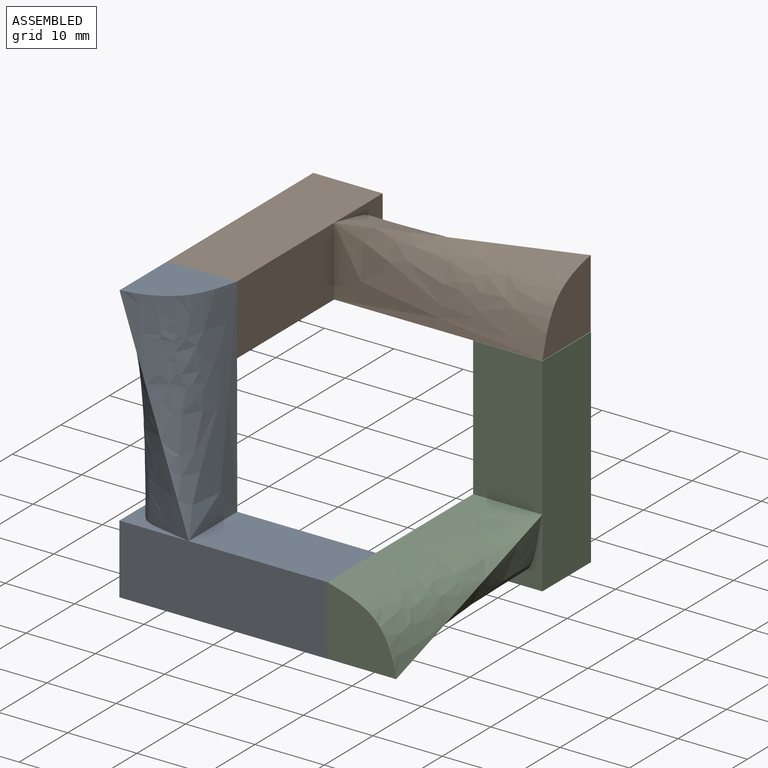
[diagram: assembled view]
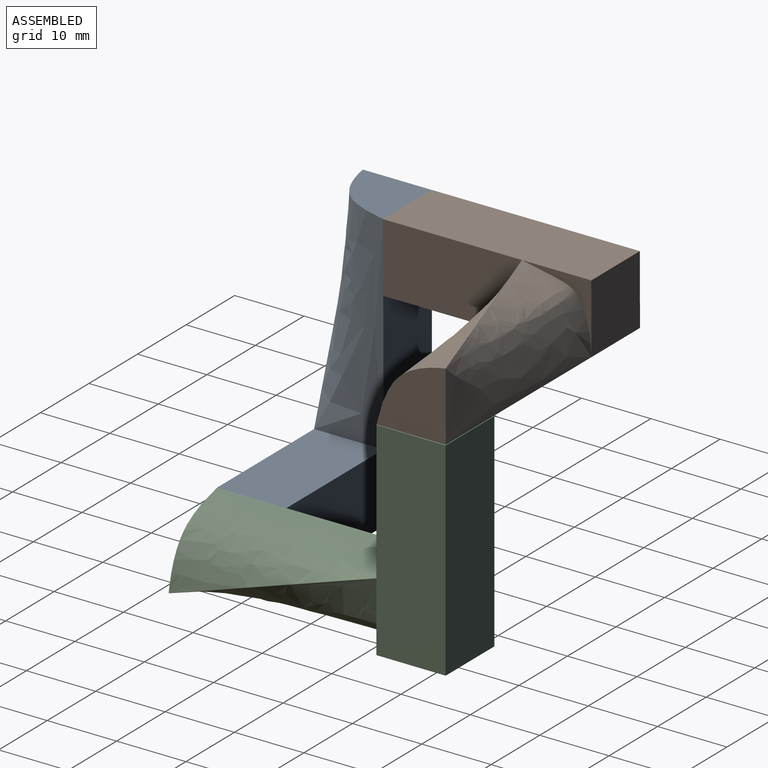
[diagram: assembled view, second angle]
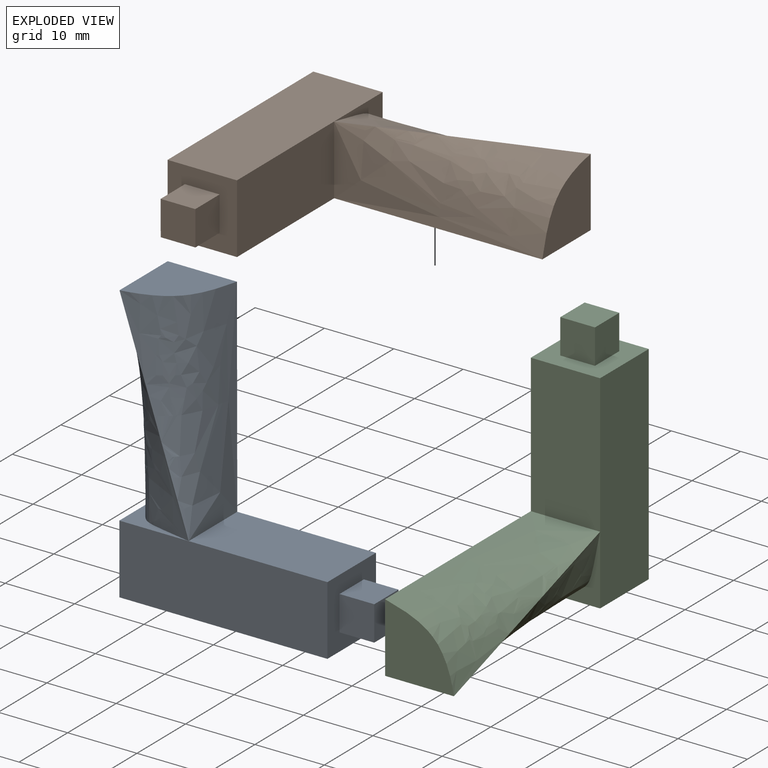
[diagram: exploded view]
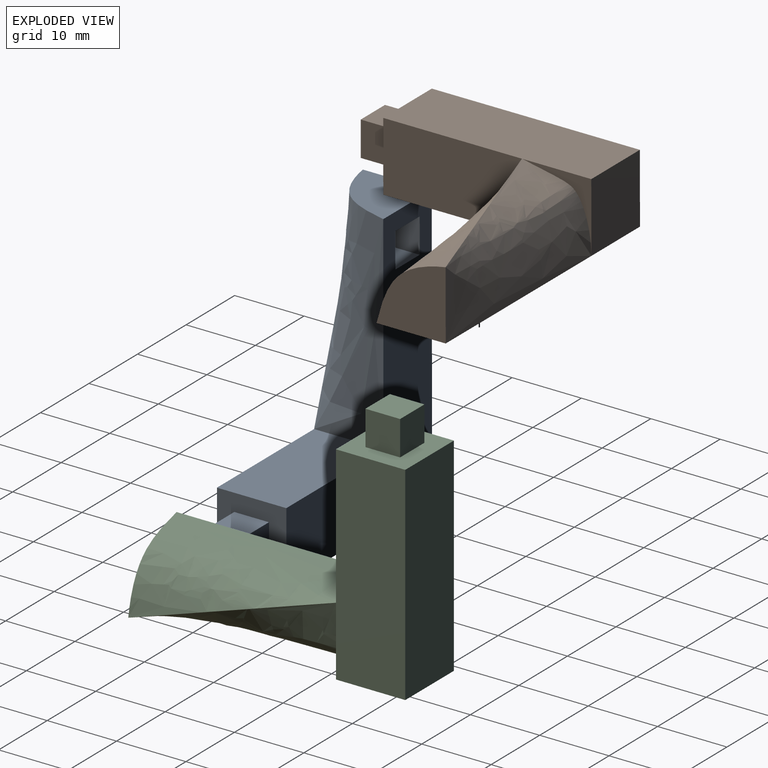
[diagram: exploded view, second angle]
ASSEMBLY  parts=3 mates=6
PART A: 21 faces, bbox 40.2x10.2x35.2 mm
  f0: plane 30x10mm, normal (0,-1,0), area 274.8mm2, adj f6,f8,f9,f10,f16,f17,f18,f19
  f1: plane 10x10mm, normal (0,0,1), area 75mm2, adj f2,f4,f5,f6,f11,f12,f13,f14
  f2: plane 20x10mm, normal (1,0,0), area 200mm2, adj f1,f4,f6,f9
  f3: plane 10.15x10.15mm, normal (1,0,0), area 16.6mm2, adj f4,f7,f10
  f4: plane 30x10mm, normal (0,1,0), area 300mm2, adj f1,f2,f3,f5,f7
  f5: plane 30x10mm, normal (-1,0,0), area 300mm2, adj f1,f4,f6,f7
  f6: plane 30x10mm, normal (0,-1,0), area 300mm2, adj f0,f1,f2,f5,f7
  f7: plane 10x10mm, normal (0,0,-1), area 100mm2, adj f3,f4,f5,f6
  f8: plane 10.06x10mm, normal (1,0,0), area 74.1mm2, adj f0,f9,f10
  f9: bspline ~30x10mm, area 361.7mm2, adj f0,f2,f8,f10
  f10: bspline ~30x10mm, area 372.3mm2, adj f0,f3,f8,f9
  f11: plane 5x5mm, normal (0,1,0), area 25mm2, adj f1,f12,f14,f15
  f12: plane 5x5mm, normal (-1,0,0), area 25mm2, adj f1,f11,f13,f15
  f13: plane 5x5mm, normal (0,-1,0), area 25mm2, adj f1,f12,f14,f15
  f14: plane 5x5mm, normal (1,0,0), area 25mm2, adj f1,f11,f13,f15
  f15: plane 5x5mm, normal (0,0,1), area 25mm2, adj f11,f12,f13,f14
  f16: plane 6.01x5.01mm, normal (0,0,-1), area 30mm2, adj f0,f17,f19,f20
  f17: plane 6x5mm, normal (1,0,0), area 30mm2, adj f0,f16,f18,f20
  f18: plane 6.01x5.01mm, normal (0,0,1), area 30mm2, adj f0,f17,f19,f20
  f19: plane 6x5mm, normal (-1,0,0), area 30mm2, adj f0,f16,f18,f20
  f20: plane 5x5mm, normal (0,-1,0), area 25mm2, adj f16,f17,f18,f19
PART B: same geometry as A
PART C: same geometry as A
PLACE A rot(axis=(-0.71,0,-0.71),180deg) t=(24.58,27.68,-26.67)mm
PLACE B rot(axis=(1,0,0),90.1deg) t=(29.56,62.64,3.37)mm
PLACE C rot(axis=(0,0,-1),90.1deg) t=(59.58,57.67,-31.66)mm
MATE planar B.f11 <-> A.f19  axis (0,0,1) through (29.56,30.14,5.82)mm
MATE planar B.f14 <-> A.f16  axis (1,0,0) through (32.06,30.14,3.32)mm
MATE planar A.f1 <-> C.f0  axis (1,0,0) through (54.58,30.18,-29.17)mm
MATE planar A.f11 <-> C.f19  axis (0,-1,0) through (57.08,25.18,-26.67)mm
MATE planar A.f14 <-> C.f16  axis (0,0,1) through (57.08,27.68,-24.17)mm
MATE planar B.f1 <-> A.f0  axis (0,-1,0) through (32.06,32.64,5.83)mm
